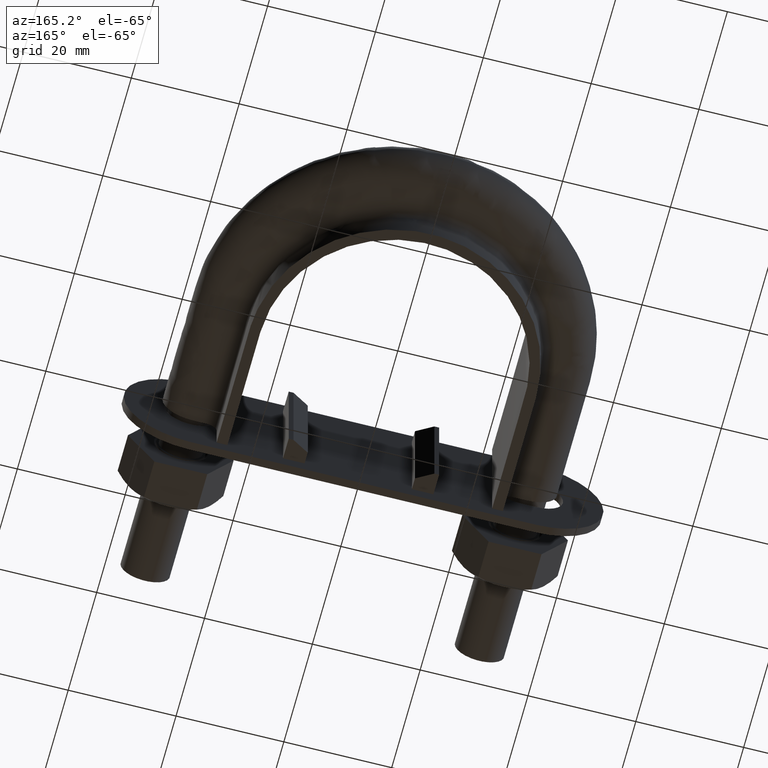
[diagram: clean part render]
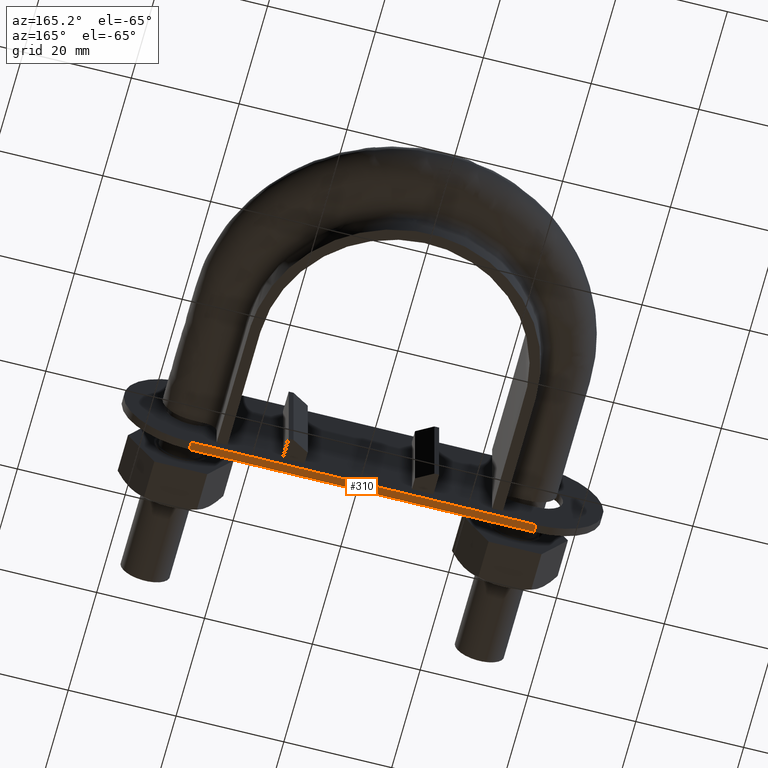
[diagram: same view with one face highlighted and labeled with its STEP entity id]
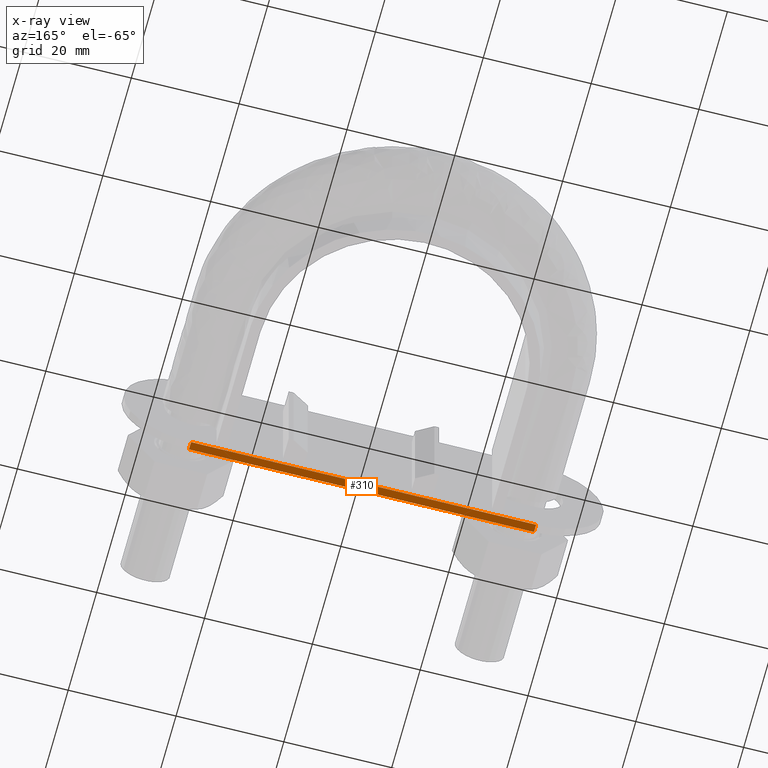
[diagram: x-ray of the same camera — body ghosted, the highlighted face saturated]
A machine part, auxiliary view. The second image highlights one B-rep face of the part: STEP entity #310.
The next image is the same camera in x-ray: the body ghosted, the highlighted face saturated — about 0% of this face is hidden behind the body in this view.
In plain terms, the highlighted planar face has unit normal (0, 0, -1).
Its self-contained STEP definition (entity closure, byte-faithful):
#310 = ADVANCED_FACE( '', ( #486 ), #487, .T. );
#486 = FACE_OUTER_BOUND( '', #1568, .T. );
#487 = PLANE( '', #1569 );
#1568 = EDGE_LOOP( '', ( #2031, #2032, #2033, #2034 ) );
#1569 = AXIS2_PLACEMENT_3D( '', #2035, #2036, #2037 );
#2031 = ORIENTED_EDGE( '', *, *, #2632, .F. );
#2032 = ORIENTED_EDGE( '', *, *, #2649, .F. );
#2033 = ORIENTED_EDGE( '', *, *, #2599, .T. );
#2034 = ORIENTED_EDGE( '', *, *, #2647, .T. );
#2035 = CARTESIAN_POINT( '', ( 31.0000000001039, 30.7000000000000, -12.4999999997425 ) );
#2036 = DIRECTION( '', ( 8.30656377015886E-012, 2.19103554239293E-016, -1.00000000000000 ) );
#2037 = DIRECTION( '', ( 1.00000000000000, -2.69049844739114E-016, 8.30656377015886E-012 ) );
#2599 = EDGE_CURVE( '', #2876, #2874, #2877, .T. );
#2632 = EDGE_CURVE( '', #2934, #2936, #2937, .T. );
#2647 = EDGE_CURVE( '', #2874, #2936, #2961, .T. );
#2649 = EDGE_CURVE( '', #2876, #2934, #2964, .T. );
#2874 = VERTEX_POINT( '', #3516 );
#2876 = VERTEX_POINT( '', #3518 );
#2877 = LINE( '', #3519, #3520 );
#2934 = VERTEX_POINT( '', #3601 );
#2936 = VERTEX_POINT( '', #3603 );
#2937 = LINE( '', #3604, #3605 );
#2961 = LINE( '', #3639, #3640 );
#2964 = LINE( '', #3643, #3644 );
#3516 = CARTESIAN_POINT( '', ( -32.9999999998962, 30.7000000000000, -12.5000000002741 ) );
#3518 = CARTESIAN_POINT( '', ( 31.0000000001038, 30.7000000000000, -12.4999999997425 ) );
#3519 = CARTESIAN_POINT( '', ( 31.0000000001039, 30.7000000000000, -12.4999999997425 ) );
#3520 = VECTOR( '', #4141, 1000.00000000000 );
#3601 = CARTESIAN_POINT( '', ( 31.0000000001038, 32.2000000000000, -12.4999999997425 ) );
#3603 = CARTESIAN_POINT( '', ( -32.9999999998962, 32.2000000000000, -12.5000000002741 ) );
#3604 = CARTESIAN_POINT( '', ( 31.0000000001039, 32.2000000000000, -12.4999999997425 ) );
#3605 = VECTOR( '', #4190, 1000.00000000000 );
#3639 = CARTESIAN_POINT( '', ( -32.9999999998962, 30.7000000000000, -12.5000000002741 ) );
#3640 = VECTOR( '', #4213, 1000.00000000000 );
#3643 = CARTESIAN_POINT( '', ( 31.0000000001038, 30.7000000000000, -12.4999999997425 ) );
#3644 = VECTOR( '', #4217, 1000.00000000000 );
#4141 = DIRECTION( '', ( -1.00000000000000, 2.69049844739114E-016, -8.30656377015886E-012 ) );
#4190 = DIRECTION( '', ( -1.00000000000000, 2.69049844739114E-016, -8.30656377015886E-012 ) );
#4213 = DIRECTION( '', ( 2.69049844737294E-016, 1.00000000000000, 2.19103554241528E-016 ) );
#4217 = DIRECTION( '', ( 2.69049844737294E-016, 1.00000000000000, 2.19103554241528E-016 ) );